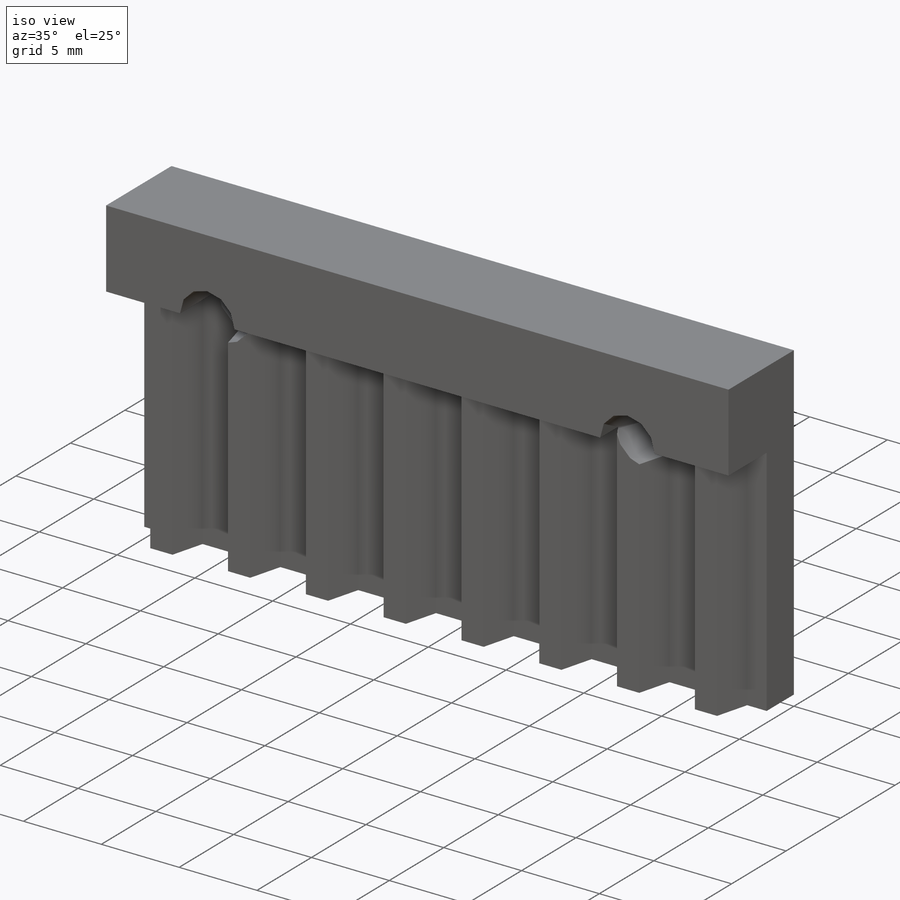
[diagram: iso view]
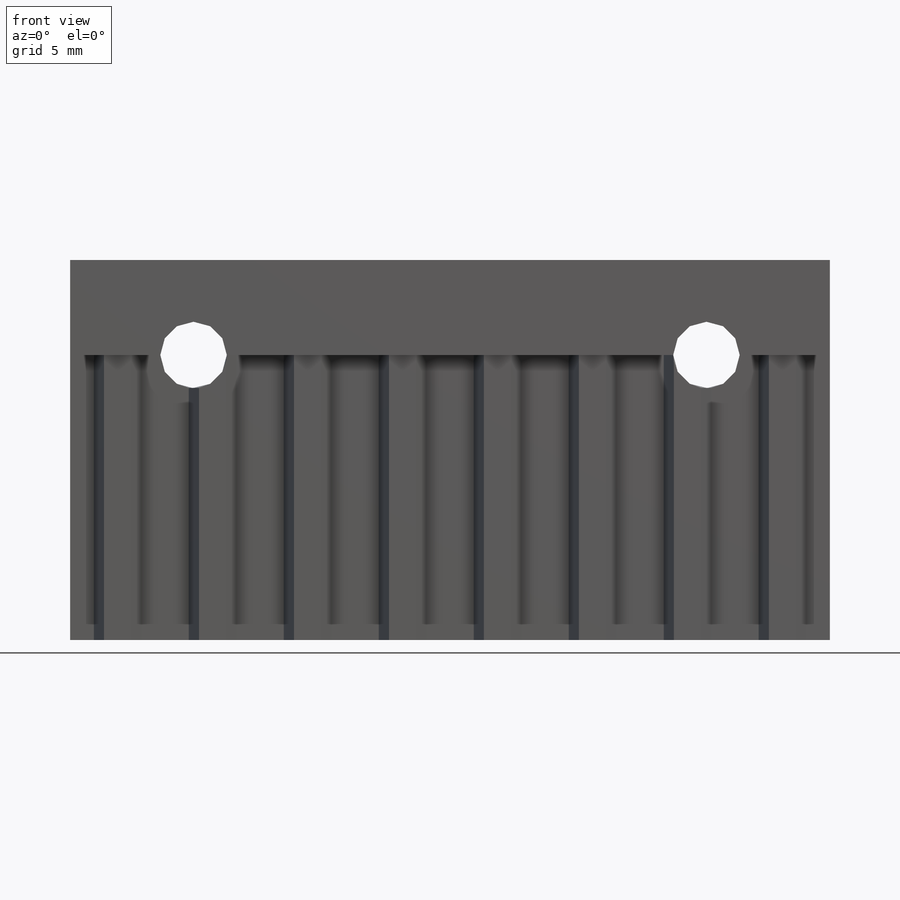
[diagram: front view]
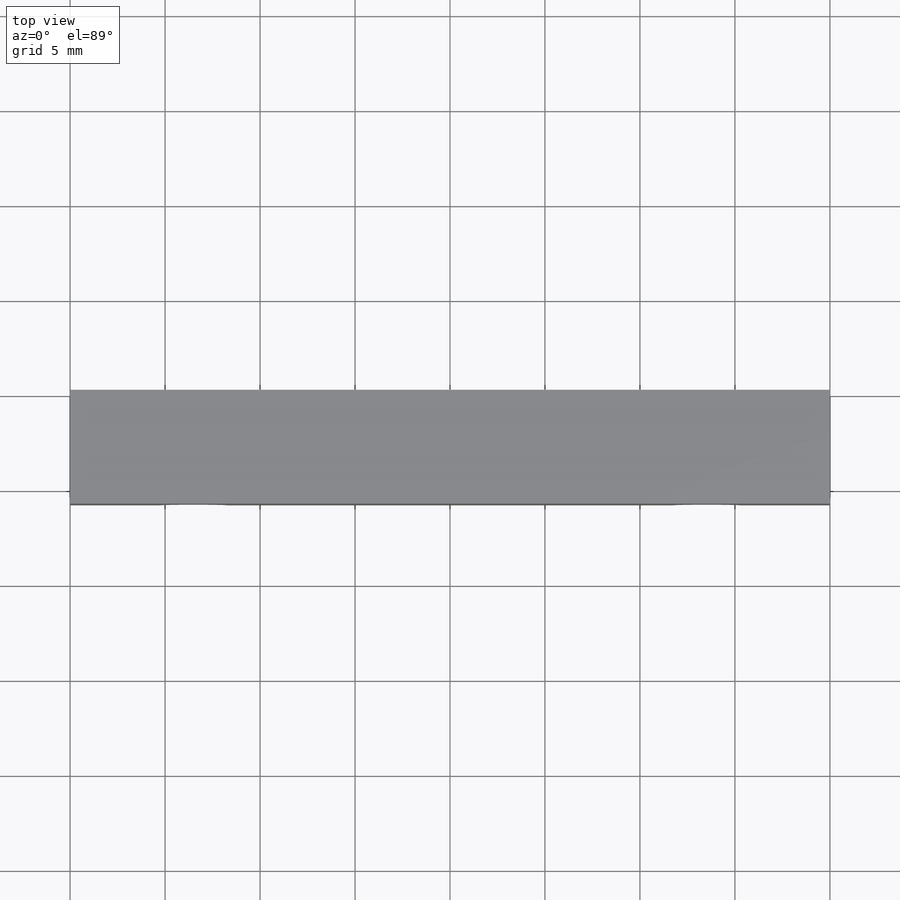
[diagram: top view]
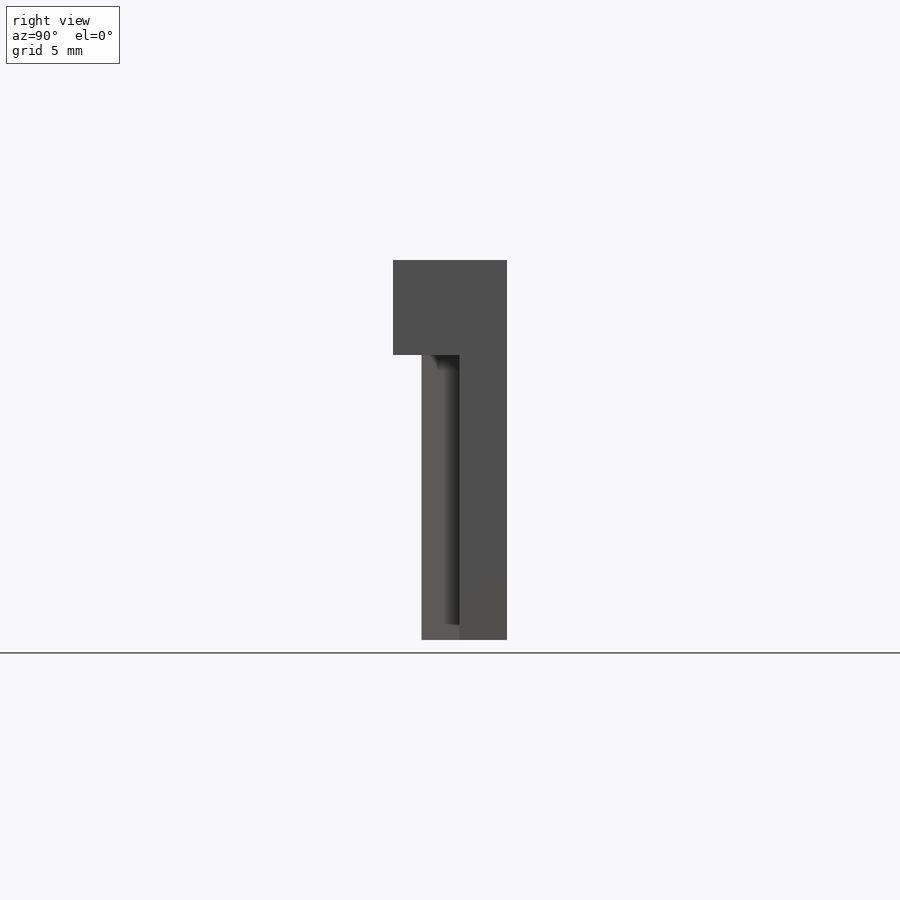
[diagram: right view]
SOLIDWORKS PART (.sldprt)
format: sldprt  version: not decoded by parser v0  size: 183,808 bytes
history: native  units: mm
features: plane x3, sketch x3, cut_extrude x2, material x1, extrude x1, pattern_linear x1 (+10 scaffold rows collapsed)
feature tree (21):
  scaffold x10  (default folders/planes/origin — collapsed)
  material  "材質 <未指定>"
  plane  "前基準面"
  plane  "上基準面"
  plane  "右基準面"
  sketch  "草圖1"  dims[c1.D3=~4.864494mm c1.D4=~4.864494mm c1.D5=3.5mm c1.D1=40.0mm c1.D2=20.0mm c2.D3=6.5mm c2.D4=5.0mm]
  extrude  "填料-伸長1"  Depth=6mm
  sketch  "草圖2"  dims[D1=1.5mm]
  cut_extrude  "除料-伸長1"  Depth=15mm
  sketch  "草圖3"  dims[c1.D1=2.0mm c1.D2=2.0mm c2.D2=75.0deg c2.D3=5.0mm c2.D4=2.5mm c2.D1=1.25mm c3.D1=75.0deg c3.D2=2.0mm]
  cut_extrude  "除料-伸長2"  [1 undecoded]
  pattern_linear  "直線複製排列1"  Count1=8 Count2=1 Spacing1=5mm Spacing2=10mm
decode coverage: 6 of 7 modeling features carry decoded parameters
note: ~ marks probable driven/reference dimensions
note: 1 parameter value undecoded
note: suppression state not decoded; provenance and decode notes live in map.json
